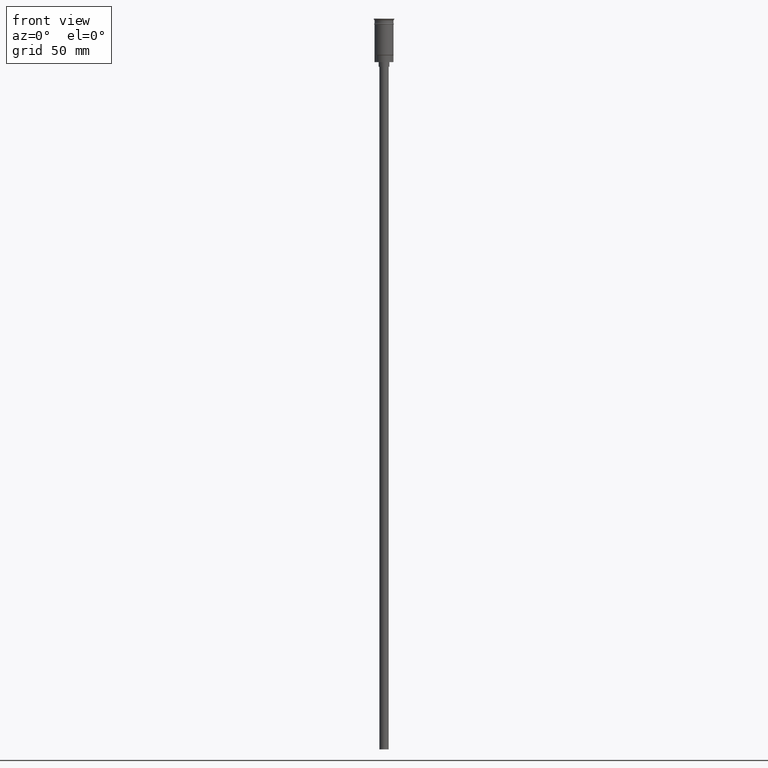
[diagram: clean part render]
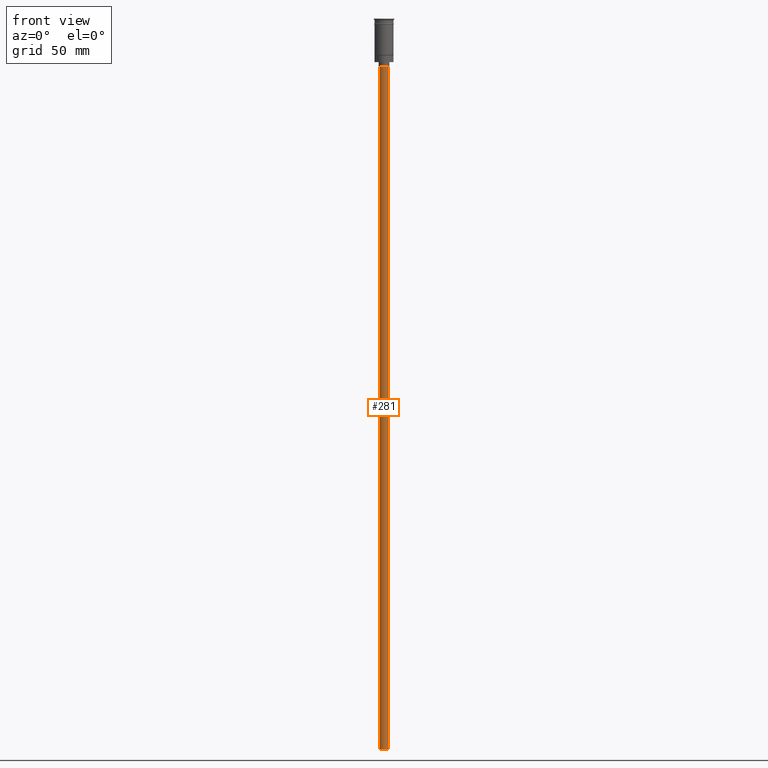
[diagram: same view with one face highlighted and labeled with its STEP entity id]
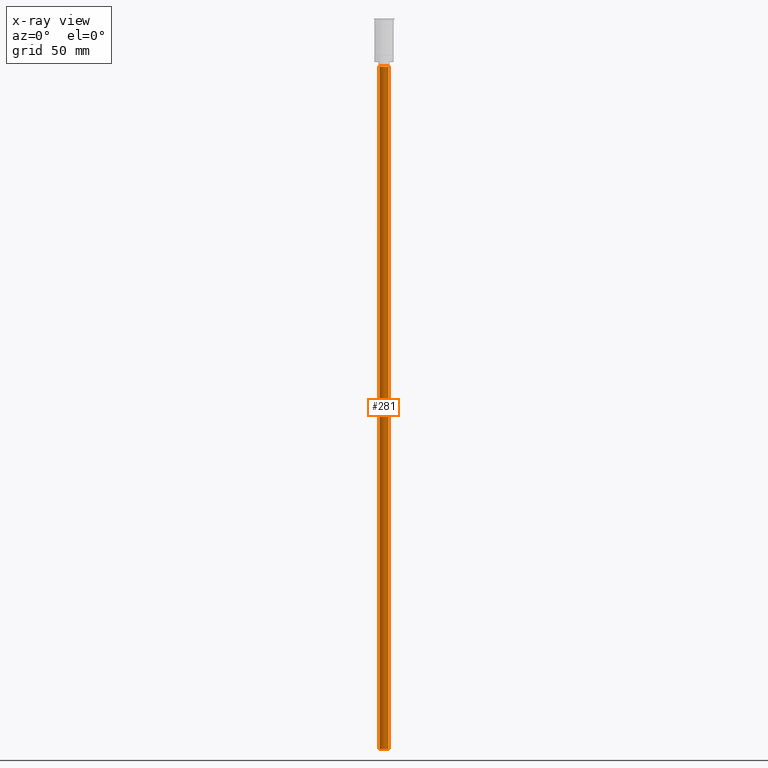
[diagram: x-ray of the same camera — body ghosted, the highlighted face saturated]
A machine part, front view. The second image highlights one B-rep face of the part: STEP entity #281.
The next image is the same camera in x-ray: the body ghosted, the highlighted face saturated — about 0% of this face is hidden behind the body in this view.
In plain terms, the highlighted cylindrical surface (edge-blend (fillet) strip) has radius 3 mm, axis along (-0, -0, 1).
Its self-contained STEP definition (entity closure, byte-faithful):
#17 = VERTEX_POINT ( 'NONE', #1466 ) ;
#23 = VERTEX_POINT ( 'NONE', #833 ) ;
#52 = FACE_OUTER_BOUND ( 'NONE', #1377, .T. ) ;
#57 = DIRECTION ( 'NONE',  ( -1.000000000000000000, 0.000000000000000000, 0.000000000000000000 ) ) ;
#118 = VECTOR ( 'NONE', #1192, 1000.000000000000000 ) ;
#188 = EDGE_CURVE ( 'NONE', #23, #1282, #1375, .T. ) ;
#281 = ADVANCED_FACE ( 'NONE', ( #52 ), #807, .T. ) ;
#338 = AXIS2_PLACEMENT_3D ( 'NONE', #606, #1600, #478 ) ;
#343 = ORIENTED_EDGE ( 'NONE', *, *, #810, .T. ) ;
#410 = DIRECTION ( 'NONE',  ( 1.000000000000000000, 0.000000000000000000, 0.000000000000000000 ) ) ;
#478 = DIRECTION ( 'NONE',  ( -1.000000000000000000, 0.000000000000000000, 0.000000000000000000 ) ) ;
#606 = CARTESIAN_POINT ( 'NONE',  ( 0.000000000000000000, 0.000000000000000000, -478.5000000000000568 ) ) ;
#627 = DIRECTION ( 'NONE',  ( -0.000000000000000000, -0.000000000000000000, 1.000000000000000000 ) ) ;
#657 = CARTESIAN_POINT ( 'NONE',  ( -3.000000000000000444, 3.673940397442060361E-16, -478.5000000000000568 ) ) ;
#678 = ORIENTED_EDGE ( 'NONE', *, *, #188, .F. ) ;
#689 = CARTESIAN_POINT ( 'NONE',  ( 0.000000000000000000, 0.000000000000000000, -31.50000000000000000 ) ) ;
#714 = ORIENTED_EDGE ( 'NONE', *, *, #1042, .F. ) ;
#749 = CARTESIAN_POINT ( 'NONE',  ( -3.000000000000000444, 3.673940397442060361E-16, -31.50000000000000000 ) ) ;
#807 = CYLINDRICAL_SURFACE ( 'NONE', #1365, 3.000000000000000444 ) ;
#810 = EDGE_CURVE ( 'NONE', #1151, #17, #1409, .T. ) ;
#833 = CARTESIAN_POINT ( 'NONE',  ( -3.000000000000000444, 3.673940397442060361E-16, -478.5000000000000568 ) ) ;
#885 = CIRCLE ( 'NONE', #338, 3.000000000000000444 ) ;
#1037 = AXIS2_PLACEMENT_3D ( 'NONE', #689, #1436, #57 ) ;
#1042 = EDGE_CURVE ( 'NONE', #1151, #23, #885, .T. ) ;
#1133 = VECTOR ( 'NONE', #627, 1000.000000000000000 ) ;
#1151 = VERTEX_POINT ( 'NONE', #1174 ) ;
#1174 = CARTESIAN_POINT ( 'NONE',  ( 3.000000000000000444, 0.000000000000000000, -478.5000000000000568 ) ) ;
#1192 = DIRECTION ( 'NONE',  ( -0.000000000000000000, -0.000000000000000000, 1.000000000000000000 ) ) ;
#1217 = CIRCLE ( 'NONE', #1037, 3.000000000000000444 ) ;
#1282 = VERTEX_POINT ( 'NONE', #749 ) ;
#1300 = CARTESIAN_POINT ( 'NONE',  ( 0.000000000000000000, 0.000000000000000000, -478.5000000000000568 ) ) ;
#1365 = AXIS2_PLACEMENT_3D ( 'NONE', #1300, #1534, #410 ) ;
#1375 = LINE ( 'NONE', #657, #1133 ) ;
#1377 = EDGE_LOOP ( 'NONE', ( #678, #714, #343, #1517 ) ) ;
#1409 = LINE ( 'NONE', #1535, #118 ) ;
#1436 = DIRECTION ( 'NONE',  ( 0.000000000000000000, 0.000000000000000000, -1.000000000000000000 ) ) ;
#1466 = CARTESIAN_POINT ( 'NONE',  ( 3.000000000000000444, 0.000000000000000000, -31.50000000000000000 ) ) ;
#1517 = ORIENTED_EDGE ( 'NONE', *, *, #1530, .T. ) ;
#1530 = EDGE_CURVE ( 'NONE', #17, #1282, #1217, .T. ) ;
#1534 = DIRECTION ( 'NONE',  ( -0.000000000000000000, -0.000000000000000000, 1.000000000000000000 ) ) ;
#1535 = CARTESIAN_POINT ( 'NONE',  ( 3.000000000000000444, 0.000000000000000000, -478.5000000000000568 ) ) ;
#1600 = DIRECTION ( 'NONE',  ( 0.000000000000000000, 0.000000000000000000, -1.000000000000000000 ) ) ;